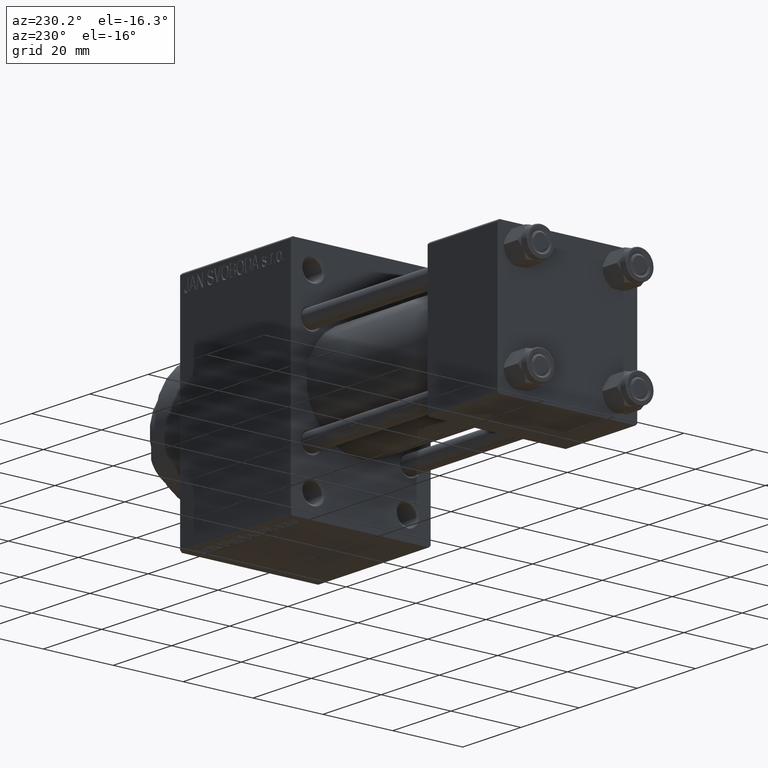
[diagram: clean part render]
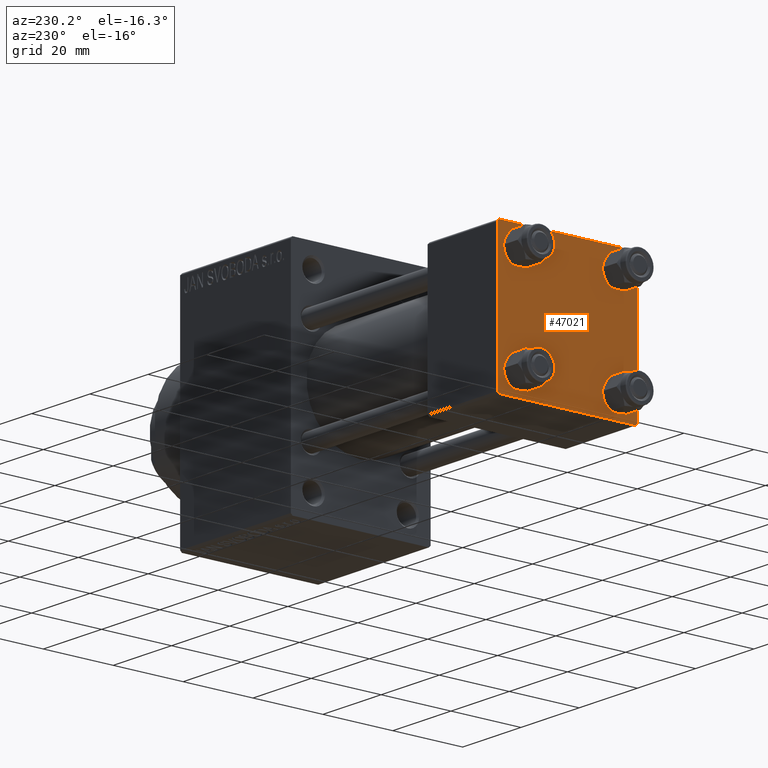
[diagram: same view with one face highlighted and labeled with its STEP entity id]
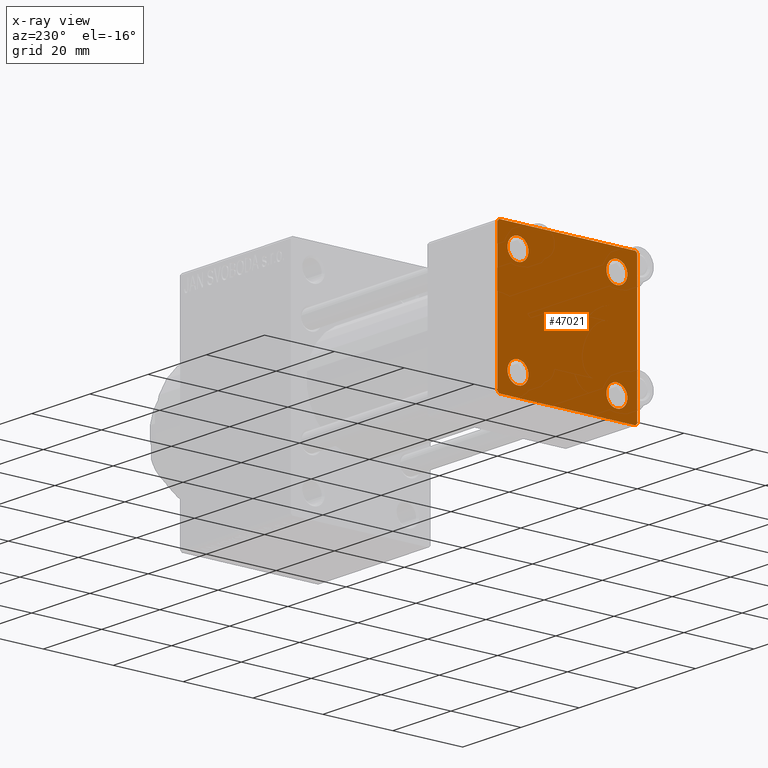
[diagram: x-ray of the same camera — body ghosted, the highlighted face saturated]
A machine part, auxiliary view. The second image highlights one B-rep face of the part: STEP entity #47021.
The next image is the same camera in x-ray: the body ghosted, the highlighted face saturated — about 0% of this face is hidden behind the body in this view.
In plain terms, the highlighted planar face has unit normal (-1, 0, 0).
Its self-contained STEP definition (entity closure, byte-faithful):
#703 = VECTOR ( 'NONE', #41847, 1000.000000000000000 ) ;
#860 = CARTESIAN_POINT ( 'NONE',  ( 0.000000000000000000, 14.14999999999999858, -17.14999999999998437 ) ) ;
#1072 = DIRECTION ( 'NONE',  ( 0.000000000000000000, 0.000000000000000000, 1.000000000000000000 ) ) ;
#1569 = DIRECTION ( 'NONE',  ( 0.000000000000000000, -0.7071067811865401342, 0.7071067811865549002 ) ) ;
#2286 = LINE ( 'NONE', #8948, #10301 ) ;
#2506 = LINE ( 'NONE', #30352, #10925 ) ;
#2625 = DIRECTION ( 'NONE',  ( -0.000000000000000000, 0.7071067811865500152, 0.7071067811865451302 ) ) ;
#2673 = VERTEX_POINT ( 'NONE', #40877 ) ;
#3084 = CARTESIAN_POINT ( 'NONE',  ( -0.000000000000000000, -19.74999999999992539, 19.75000000000006395 ) ) ;
#4101 = ORIENTED_EDGE ( 'NONE', *, *, #44031, .T. ) ;
#4595 = VECTOR ( 'NONE', #27085, 1000.000000000000000 ) ;
#4833 = CARTESIAN_POINT ( 'NONE',  ( 0.000000000000000000, -14.14999999999999503, 17.14999999999998792 ) ) ;
#5846 = CARTESIAN_POINT ( 'NONE',  ( 0.000000000000000000, -14.14999999999999503, 11.15000000000002345 ) ) ;
#6566 = AXIS2_PLACEMENT_3D ( 'NONE', #22965, #30570, #1072 ) ;
#6794 = ORIENTED_EDGE ( 'NONE', *, *, #39733, .T. ) ;
#6871 = LINE ( 'NONE', #3084, #26204 ) ;
#7264 = AXIS2_PLACEMENT_3D ( 'NONE', #37353, #7636, #29310 ) ;
#7333 = LINE ( 'NONE', #46597, #15732 ) ;
#7404 = ORIENTED_EDGE ( 'NONE', *, *, #27511, .T. ) ;
#7409 = LINE ( 'NONE', #17670, #15607 ) ;
#7425 = CARTESIAN_POINT ( 'NONE',  ( 0.000000000000000000, -14.14999999999999503, -11.15000000000000036 ) ) ;
#7612 = AXIS2_PLACEMENT_3D ( 'NONE', #11710, #17744, #46513 ) ;
#7636 = DIRECTION ( 'NONE',  ( -1.000000000000000000, 0.000000000000000000, -0.000000000000000000 ) ) ;
#8103 = VECTOR ( 'NONE', #28472, 1000.000000000000000 ) ;
#8460 = EDGE_CURVE ( 'NONE', #11179, #37653, #13047, .T. ) ;
#8793 = VERTEX_POINT ( 'NONE', #40917 ) ;
#8948 = CARTESIAN_POINT ( 'NONE',  ( -0.000000000000000000, 19.75000000000013500, 19.74999999999986144 ) ) ;
#9032 = CARTESIAN_POINT ( 'NONE',  ( 0.000000000000000000, 20.00000000000000000, 20.00000000000000000 ) ) ;
#9367 = EDGE_LOOP ( 'NONE', ( #29244, #11840, #35031, #6794, #18618, #4101, #40548, #40698 ) ) ;
#9394 = CIRCLE ( 'NONE', #32966, 2.999999999999983569 ) ;
#9533 = ORIENTED_EDGE ( 'NONE', *, *, #42905, .T. ) ;
#9640 = CARTESIAN_POINT ( 'NONE',  ( 0.000000000000000000, -14.14999999999999503, 14.15000000000000391 ) ) ;
#10091 = VERTEX_POINT ( 'NONE', #29259 ) ;
#10301 = VECTOR ( 'NONE', #26805, 999.9999999999998863 ) ;
#10608 = LINE ( 'NONE', #13958, #8103 ) ;
#10819 = AXIS2_PLACEMENT_3D ( 'NONE', #29281, #43541, #25943 ) ;
#10925 = VECTOR ( 'NONE', #1569, 1000.000000000000000 ) ;
#11179 = VERTEX_POINT ( 'NONE', #34655 ) ;
#11664 = VERTEX_POINT ( 'NONE', #7425 ) ;
#11710 = CARTESIAN_POINT ( 'NONE',  ( 0.000000000000000000, 14.14999999999999858, 14.15000000000000036 ) ) ;
#11840 = ORIENTED_EDGE ( 'NONE', *, *, #44887, .T. ) ;
#11848 = CARTESIAN_POINT ( 'NONE',  ( 0.000000000000000000, 14.14999999999999858, 17.14999999999998437 ) ) ;
#12151 = FACE_BOUND ( 'NONE', #40767, .T. ) ;
#13047 = CIRCLE ( 'NONE', #22264, 2.999999999999983569 ) ;
#13633 = VERTEX_POINT ( 'NONE', #28488 ) ;
#13875 = VERTEX_POINT ( 'NONE', #16083 ) ;
#13958 = CARTESIAN_POINT ( 'NONE',  ( 0.000000000000000000, -20.00000000000000355, 19.99999999999998934 ) ) ;
#14324 = DIRECTION ( 'NONE',  ( 0.000000000000000000, 0.000000000000000000, 1.000000000000000000 ) ) ;
#14378 = DIRECTION ( 'NONE',  ( 0.000000000000000000, 0.000000000000000000, 1.000000000000000000 ) ) ;
#15262 = EDGE_CURVE ( 'NONE', #13875, #46548, #44548, .T. ) ;
#15607 = VECTOR ( 'NONE', #32887, 1000.000000000000000 ) ;
#15732 = VECTOR ( 'NONE', #28301, 1000.000000000000000 ) ;
#15875 = EDGE_CURVE ( 'NONE', #13633, #36464, #10608, .T. ) ;
#16083 = CARTESIAN_POINT ( 'NONE',  ( 0.000000000000000000, 14.14999999999999858, -11.15000000000001812 ) ) ;
#16092 = CIRCLE ( 'NONE', #10819, 2.999999999999983569 ) ;
#16932 = EDGE_CURVE ( 'NONE', #26476, #8793, #7333, .T. ) ;
#17019 = CARTESIAN_POINT ( 'NONE',  ( 0.000000000000000000, -14.14999999999999503, -14.15000000000000391 ) ) ;
#17204 = CIRCLE ( 'NONE', #29353, 3.000000000000004441 ) ;
#17670 = CARTESIAN_POINT ( 'NONE',  ( -0.000000000000000000, 19.74999999999986855, -19.75000000000014211 ) ) ;
#17744 = DIRECTION ( 'NONE',  ( 1.000000000000000000, 0.000000000000000000, 0.000000000000000000 ) ) ;
#18237 = CIRCLE ( 'NONE', #21293, 2.999999999999983569 ) ;
#18618 = ORIENTED_EDGE ( 'NONE', *, *, #15875, .F. ) ;
#18748 = CARTESIAN_POINT ( 'NONE',  ( 0.000000000000000000, -14.14999999999999503, -14.15000000000000391 ) ) ;
#18937 = VERTEX_POINT ( 'NONE', #42584 ) ;
#19299 = FACE_BOUND ( 'NONE', #25962, .T. ) ;
#19713 = LINE ( 'NONE', #31120, #4595 ) ;
#21293 = AXIS2_PLACEMENT_3D ( 'NONE', #41713, #39259, #35698 ) ;
#21918 = CARTESIAN_POINT ( 'NONE',  ( 0.000000000000000000, -20.00000000000000000, -19.49999999999999645 ) ) ;
#22264 = AXIS2_PLACEMENT_3D ( 'NONE', #25787, #32454, #14378 ) ;
#22266 = ORIENTED_EDGE ( 'NONE', *, *, #27051, .T. ) ;
#22965 = CARTESIAN_POINT ( 'NONE',  ( 0.000000000000000000, 14.14999999999999858, -14.15000000000000036 ) ) ;
#23687 = DIRECTION ( 'NONE',  ( 0.000000000000000000, 0.000000000000000000, 1.000000000000000000 ) ) ;
#24941 = DIRECTION ( 'NONE',  ( 1.000000000000000000, 0.000000000000000000, 0.000000000000000000 ) ) ;
#25289 = EDGE_CURVE ( 'NONE', #28613, #18937, #27123, .T. ) ;
#25787 = CARTESIAN_POINT ( 'NONE',  ( 0.000000000000000000, 14.14999999999999858, 14.15000000000000036 ) ) ;
#25943 = DIRECTION ( 'NONE',  ( 0.000000000000000000, 0.000000000000000000, 1.000000000000000000 ) ) ;
#25962 = EDGE_LOOP ( 'NONE', ( #27296, #35369 ) ) ;
#26204 = VECTOR ( 'NONE', #2625, 1000.000000000000114 ) ;
#26476 = VERTEX_POINT ( 'NONE', #35153 ) ;
#26805 = DIRECTION ( 'NONE',  ( 0.000000000000000000, 0.7071067811865425767, -0.7071067811865525687 ) ) ;
#27051 = EDGE_CURVE ( 'NONE', #11664, #10091, #28117, .T. ) ;
#27085 = DIRECTION ( 'NONE',  ( 0.000000000000000000, 0.000000000000000000, -1.000000000000000000 ) ) ;
#27123 = LINE ( 'NONE', #9032, #703 ) ;
#27296 = ORIENTED_EDGE ( 'NONE', *, *, #15262, .T. ) ;
#27511 = EDGE_CURVE ( 'NONE', #29626, #34502, #18237, .T. ) ;
#27660 = CARTESIAN_POINT ( 'NONE',  ( 0.000000000000000000, 19.50000000000000000, 20.00000000000000000 ) ) ;
#28117 = CIRCLE ( 'NONE', #34188, 3.000000000000004441 ) ;
#28301 = DIRECTION ( 'NONE',  ( 0.000000000000000000, -1.000000000000000000, 1.734723475976807094E-16 ) ) ;
#28472 = DIRECTION ( 'NONE',  ( 0.000000000000000000, 8.673617379884036705E-17, -1.000000000000000000 ) ) ;
#28488 = CARTESIAN_POINT ( 'NONE',  ( 0.000000000000000000, -20.00000000000000355, 19.49999999999998224 ) ) ;
#28613 = VERTEX_POINT ( 'NONE', #27660 ) ;
#29244 = ORIENTED_EDGE ( 'NONE', *, *, #32345, .T. ) ;
#29259 = CARTESIAN_POINT ( 'NONE',  ( 0.000000000000000000, -14.14999999999999503, -17.15000000000000924 ) ) ;
#29281 = CARTESIAN_POINT ( 'NONE',  ( 0.000000000000000000, 14.14999999999999858, -14.15000000000000036 ) ) ;
#29310 = DIRECTION ( 'NONE',  ( -0.000000000000000000, 0.000000000000000000, 1.000000000000000000 ) ) ;
#29353 = AXIS2_PLACEMENT_3D ( 'NONE', #17019, #31522, #14324 ) ;
#29626 = VERTEX_POINT ( 'NONE', #4833 ) ;
#30236 = FACE_OUTER_BOUND ( 'NONE', #9367, .T. ) ;
#30352 = CARTESIAN_POINT ( 'NONE',  ( 0.000000000000000000, -19.75000000000020961, -19.74999999999979394 ) ) ;
#30570 = DIRECTION ( 'NONE',  ( 1.000000000000000000, 0.000000000000000000, 0.000000000000000000 ) ) ;
#31120 = CARTESIAN_POINT ( 'NONE',  ( 0.000000000000000000, 20.00000000000000000, 20.00000000000000000 ) ) ;
#31312 = EDGE_LOOP ( 'NONE', ( #7404, #38897 ) ) ;
#31522 = DIRECTION ( 'NONE',  ( 1.000000000000000000, 0.000000000000000000, 0.000000000000000000 ) ) ;
#31759 = EDGE_CURVE ( 'NONE', #37653, #11179, #33472, .T. ) ;
#32345 = EDGE_CURVE ( 'NONE', #39832, #2673, #19713, .T. ) ;
#32454 = DIRECTION ( 'NONE',  ( 1.000000000000000000, 0.000000000000000000, 0.000000000000000000 ) ) ;
#32887 = DIRECTION ( 'NONE',  ( -0.000000000000000000, -0.7071067811865524577, -0.7071067811865426878 ) ) ;
#32966 = AXIS2_PLACEMENT_3D ( 'NONE', #9640, #45552, #23687 ) ;
#33110 = FACE_BOUND ( 'NONE', #31312, .T. ) ;
#33472 = CIRCLE ( 'NONE', #7612, 2.999999999999983569 ) ;
#34188 = AXIS2_PLACEMENT_3D ( 'NONE', #18748, #24941, #37739 ) ;
#34502 = VERTEX_POINT ( 'NONE', #5846 ) ;
#34655 = CARTESIAN_POINT ( 'NONE',  ( 0.000000000000000000, 14.14999999999999858, 11.15000000000001990 ) ) ;
#35031 = ORIENTED_EDGE ( 'NONE', *, *, #16932, .T. ) ;
#35153 = CARTESIAN_POINT ( 'NONE',  ( 0.000000000000000000, 19.50000000000000711, -20.00000000000000711 ) ) ;
#35369 = ORIENTED_EDGE ( 'NONE', *, *, #35507, .T. ) ;
#35507 = EDGE_CURVE ( 'NONE', #46548, #13875, #16092, .T. ) ;
#35698 = DIRECTION ( 'NONE',  ( 0.000000000000000000, 0.000000000000000000, 1.000000000000000000 ) ) ;
#36042 = ORIENTED_EDGE ( 'NONE', *, *, #31759, .T. ) ;
#36464 = VERTEX_POINT ( 'NONE', #21918 ) ;
#37353 = CARTESIAN_POINT ( 'NONE',  ( 0.000000000000000000, 0.000000000000000000, 0.000000000000000000 ) ) ;
#37653 = VERTEX_POINT ( 'NONE', #11848 ) ;
#37739 = DIRECTION ( 'NONE',  ( 0.000000000000000000, 0.000000000000000000, 1.000000000000000000 ) ) ;
#37809 = EDGE_LOOP ( 'NONE', ( #22266, #9533 ) ) ;
#38897 = ORIENTED_EDGE ( 'NONE', *, *, #39611, .T. ) ;
#39259 = DIRECTION ( 'NONE',  ( 1.000000000000000000, 0.000000000000000000, 0.000000000000000000 ) ) ;
#39611 = EDGE_CURVE ( 'NONE', #34502, #29626, #9394, .T. ) ;
#39733 = EDGE_CURVE ( 'NONE', #8793, #36464, #2506, .T. ) ;
#39832 = VERTEX_POINT ( 'NONE', #44564 ) ;
#40548 = ORIENTED_EDGE ( 'NONE', *, *, #25289, .F. ) ;
#40698 = ORIENTED_EDGE ( 'NONE', *, *, #45260, .T. ) ;
#40767 = EDGE_LOOP ( 'NONE', ( #36042, #44903 ) ) ;
#40877 = CARTESIAN_POINT ( 'NONE',  ( 0.000000000000000000, 20.00000000000000000, -19.50000000000002132 ) ) ;
#40917 = CARTESIAN_POINT ( 'NONE',  ( 0.000000000000000000, -19.50000000000000711, -20.00000000000000000 ) ) ;
#41159 = FACE_BOUND ( 'NONE', #37809, .T. ) ;
#41713 = CARTESIAN_POINT ( 'NONE',  ( 0.000000000000000000, -14.14999999999999503, 14.15000000000000391 ) ) ;
#41847 = DIRECTION ( 'NONE',  ( 0.000000000000000000, -1.000000000000000000, -2.602085213965210149E-16 ) ) ;
#42584 = CARTESIAN_POINT ( 'NONE',  ( 0.000000000000000000, -19.49999999999999289, 19.99999999999998934 ) ) ;
#42905 = EDGE_CURVE ( 'NONE', #10091, #11664, #17204, .T. ) ;
#43541 = DIRECTION ( 'NONE',  ( 1.000000000000000000, 0.000000000000000000, 0.000000000000000000 ) ) ;
#44031 = EDGE_CURVE ( 'NONE', #13633, #18937, #6871, .T. ) ;
#44548 = CIRCLE ( 'NONE', #6566, 2.999999999999983569 ) ;
#44564 = CARTESIAN_POINT ( 'NONE',  ( 0.000000000000000000, 20.00000000000000000, 19.49999999999999289 ) ) ;
#44735 = PLANE ( 'NONE',  #7264 ) ;
#44887 = EDGE_CURVE ( 'NONE', #2673, #26476, #7409, .T. ) ;
#44903 = ORIENTED_EDGE ( 'NONE', *, *, #8460, .T. ) ;
#45260 = EDGE_CURVE ( 'NONE', #28613, #39832, #2286, .T. ) ;
#45552 = DIRECTION ( 'NONE',  ( 1.000000000000000000, 0.000000000000000000, 0.000000000000000000 ) ) ;
#46513 = DIRECTION ( 'NONE',  ( 0.000000000000000000, 0.000000000000000000, 1.000000000000000000 ) ) ;
#46548 = VERTEX_POINT ( 'NONE', #860 ) ;
#46597 = CARTESIAN_POINT ( 'NONE',  ( 0.000000000000000000, 20.00000000000000000, -20.00000000000000711 ) ) ;
#47021 = ADVANCED_FACE ( 'NONE', ( #33110, #41159, #19299, #12151, #30236 ), #44735, .T. ) ;